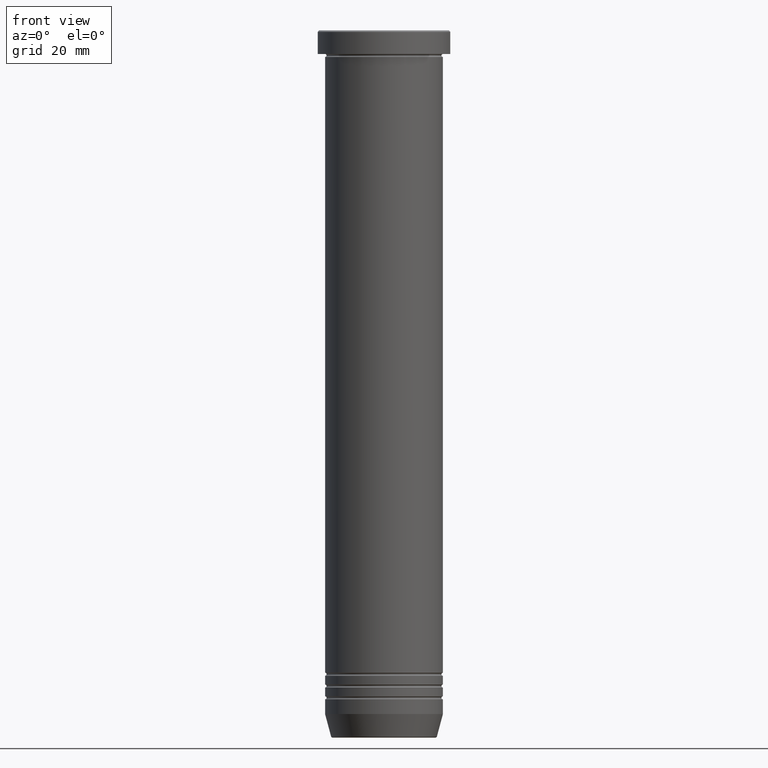
[diagram: clean part render]
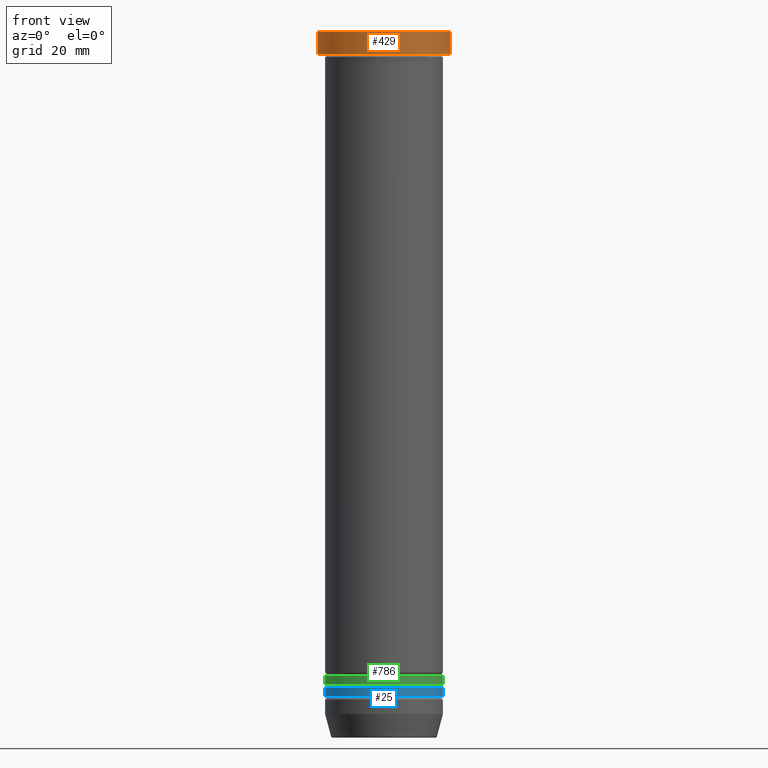
[diagram: same view with three faces highlighted in distinct colors, each labeled with its STEP entity id]
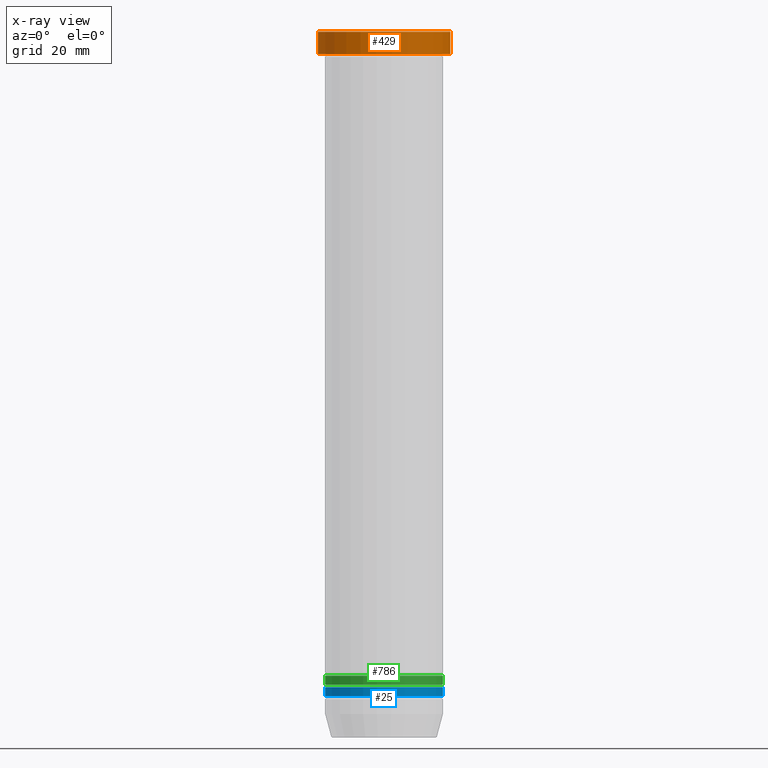
[diagram: x-ray of the same camera — body ghosted, the three highlighted faces saturated]
A machine part, front view with three faces highlighted in distinct colors.
The next image is the same camera in x-ray (body ghosted, the three faces saturated) — at least one of them is partly hidden behind the body in this view.
Their STEP definitions:

[orange] entity #429 — the highlighted cylindrical surface (partial cylindrical patch) has radius 22.5 mm, axis along (-0, -0, 1).
#1 = EDGE_LOOP ( 'NONE', ( #616, #652, #137, #670 ) ) ;
#120 = VERTEX_POINT ( 'NONE', #663 ) ;
#128 = DIRECTION ( 'NONE',  ( -0.000000000000000000, -0.000000000000000000, 1.000000000000000000 ) ) ;
#137 = ORIENTED_EDGE ( 'NONE', *, *, #365, .T. ) ;
#158 = CIRCLE ( 'NONE', #1007, 22.50000000000000000 ) ;
#183 = DIRECTION ( 'NONE',  ( 1.000000000000000000, 0.000000000000000000, 0.000000000000000000 ) ) ;
#195 = LINE ( 'NONE', #291, #944 ) ;
#215 = CARTESIAN_POINT ( 'NONE',  ( -22.50000000000000000, 2.755455298081544778E-15, 0.000000000000000000 ) ) ;
#221 = DIRECTION ( 'NONE',  ( 1.000000000000000000, 0.000000000000000000, 0.000000000000000000 ) ) ;
#224 = CARTESIAN_POINT ( 'NONE',  ( 22.50000000000000000, 0.000000000000000000, -7.999999999999998224 ) ) ;
#248 = VERTEX_POINT ( 'NONE', #925 ) ;
#291 = CARTESIAN_POINT ( 'NONE',  ( 22.50000000000000000, 0.000000000000000000, 0.000000000000000000 ) ) ;
#307 = EDGE_CURVE ( 'NONE', #120, #723, #158, .T. ) ;
#311 = CYLINDRICAL_SURFACE ( 'NONE', #503, 22.50000000000000000 ) ;
#357 = VERTEX_POINT ( 'NONE', #599 ) ;
#365 = EDGE_CURVE ( 'NONE', #723, #357, #195, .T. ) ;
#368 = LINE ( 'NONE', #215, #370 ) ;
#370 = VECTOR ( 'NONE', #128, 1000.000000000000000 ) ;
#429 = ADVANCED_FACE ( 'NONE', ( #883 ), #311, .T. ) ;
#503 = AXIS2_PLACEMENT_3D ( 'NONE', #642, #719, #740 ) ;
#529 = EDGE_CURVE ( 'NONE', #120, #248, #368, .T. ) ;
#547 = EDGE_CURVE ( 'NONE', #357, #248, #1008, .T. ) ;
#599 = CARTESIAN_POINT ( 'NONE',  ( 22.50000000000000000, 0.000000000000000000, -0.5000000000000004441 ) ) ;
#616 = ORIENTED_EDGE ( 'NONE', *, *, #529, .F. ) ;
#642 = CARTESIAN_POINT ( 'NONE',  ( 0.000000000000000000, 0.000000000000000000, 0.000000000000000000 ) ) ;
#652 = ORIENTED_EDGE ( 'NONE', *, *, #307, .T. ) ;
#663 = CARTESIAN_POINT ( 'NONE',  ( -22.50000000000000000, 2.755455298081544778E-15, -7.999999999999998224 ) ) ;
#670 = ORIENTED_EDGE ( 'NONE', *, *, #547, .T. ) ;
#686 = DIRECTION ( 'NONE',  ( -0.000000000000000000, -0.000000000000000000, 1.000000000000000000 ) ) ;
#719 = DIRECTION ( 'NONE',  ( -0.000000000000000000, -0.000000000000000000, 1.000000000000000000 ) ) ;
#723 = VERTEX_POINT ( 'NONE', #224 ) ;
#740 = DIRECTION ( 'NONE',  ( 1.000000000000000000, 0.000000000000000000, 0.000000000000000000 ) ) ;
#744 = CARTESIAN_POINT ( 'NONE',  ( 0.000000000000000000, 0.000000000000000000, -7.999999999999998224 ) ) ;
#822 = DIRECTION ( 'NONE',  ( 0.000000000000000000, 0.000000000000000000, -1.000000000000000000 ) ) ;
#883 = FACE_OUTER_BOUND ( 'NONE', #1, .T. ) ;
#893 = AXIS2_PLACEMENT_3D ( 'NONE', #1002, #822, #221 ) ;
#925 = CARTESIAN_POINT ( 'NONE',  ( -22.50000000000000000, 2.755455298081544778E-15, -0.5000000000000004441 ) ) ;
#939 = DIRECTION ( 'NONE',  ( -0.000000000000000000, -0.000000000000000000, 1.000000000000000000 ) ) ;
#944 = VECTOR ( 'NONE', #939, 1000.000000000000000 ) ;
#1002 = CARTESIAN_POINT ( 'NONE',  ( 0.000000000000000000, 0.000000000000000000, -0.5000000000000004441 ) ) ;
#1007 = AXIS2_PLACEMENT_3D ( 'NONE', #744, #686, #183 ) ;
#1008 = CIRCLE ( 'NONE', #893, 22.50000000000000000 ) ;

[blue] entity #25 — the highlighted cylindrical surface (partial cylindrical patch) has radius 20 mm, axis along (-0, -0, 1).
#12 = AXIS2_PLACEMENT_3D ( 'NONE', #624, #777, #197 ) ;
#14 = EDGE_CURVE ( 'NONE', #378, #1025, #784, .T. ) ;
#24 = DIRECTION ( 'NONE',  ( -0.000000000000000000, -0.000000000000000000, 1.000000000000000000 ) ) ;
#25 = ADVANCED_FACE ( 'NONE', ( #1013 ), #941, .T. ) ;
#31 = CARTESIAN_POINT ( 'NONE',  ( 19.99999999999999289, 0.000000000000000000, -226.0000000000000284 ) ) ;
#81 = ORIENTED_EDGE ( 'NONE', *, *, #688, .T. ) ;
#88 = EDGE_LOOP ( 'NONE', ( #133, #292, #81, #494 ) ) ;
#97 = CARTESIAN_POINT ( 'NONE',  ( -19.99999999999999645, 2.449293598294706119E-15, 0.000000000000000000 ) ) ;
#124 = CARTESIAN_POINT ( 'NONE',  ( -19.99999999999999289, 2.449293598294705724E-15, -226.0000000000000284 ) ) ;
#133 = ORIENTED_EDGE ( 'NONE', *, *, #873, .F. ) ;
#143 = CARTESIAN_POINT ( 'NONE',  ( -20.00000000000000000, 2.449293598294706513E-15, -223.0000000000000284 ) ) ;
#175 = VERTEX_POINT ( 'NONE', #143 ) ;
#182 = DIRECTION ( 'NONE',  ( -0.000000000000000000, -0.000000000000000000, 1.000000000000000000 ) ) ;
#197 = DIRECTION ( 'NONE',  ( 1.000000000000000000, 0.000000000000000000, 0.000000000000000000 ) ) ;
#207 = CARTESIAN_POINT ( 'NONE',  ( 19.99999999999999645, 0.000000000000000000, 0.000000000000000000 ) ) ;
#209 = DIRECTION ( 'NONE',  ( -0.000000000000000000, -0.000000000000000000, 1.000000000000000000 ) ) ;
#292 = ORIENTED_EDGE ( 'NONE', *, *, #14, .T. ) ;
#345 = VERTEX_POINT ( 'NONE', #909 ) ;
#378 = VERTEX_POINT ( 'NONE', #124 ) ;
#387 = DIRECTION ( 'NONE',  ( 1.000000000000000000, 0.000000000000000000, 0.000000000000000000 ) ) ;
#472 = VECTOR ( 'NONE', #182, 1000.000000000000000 ) ;
#494 = ORIENTED_EDGE ( 'NONE', *, *, #537, .F. ) ;
#504 = VECTOR ( 'NONE', #24, 1000.000000000000000 ) ;
#531 = CARTESIAN_POINT ( 'NONE',  ( 0.000000000000000000, 0.000000000000000000, 0.000000000000000000 ) ) ;
#537 = EDGE_CURVE ( 'NONE', #175, #345, #680, .T. ) ;
#542 = DIRECTION ( 'NONE',  ( -0.000000000000000000, -0.000000000000000000, 1.000000000000000000 ) ) ;
#624 = CARTESIAN_POINT ( 'NONE',  ( 0.000000000000000000, 0.000000000000000000, -226.0000000000000284 ) ) ;
#679 = AXIS2_PLACEMENT_3D ( 'NONE', #531, #209, #859 ) ;
#680 = CIRCLE ( 'NONE', #876, 20.00000000000000000 ) ;
#688 = EDGE_CURVE ( 'NONE', #1025, #345, #931, .T. ) ;
#777 = DIRECTION ( 'NONE',  ( -0.000000000000000000, -0.000000000000000000, 1.000000000000000000 ) ) ;
#784 = CIRCLE ( 'NONE', #12, 19.99999999999999289 ) ;
#859 = DIRECTION ( 'NONE',  ( 1.000000000000000000, 0.000000000000000000, 0.000000000000000000 ) ) ;
#873 = EDGE_CURVE ( 'NONE', #378, #175, #918, .T. ) ;
#876 = AXIS2_PLACEMENT_3D ( 'NONE', #1021, #542, #387 ) ;
#909 = CARTESIAN_POINT ( 'NONE',  ( 20.00000000000000000, 0.000000000000000000, -223.0000000000000284 ) ) ;
#918 = LINE ( 'NONE', #97, #472 ) ;
#931 = LINE ( 'NONE', #207, #504 ) ;
#941 = CYLINDRICAL_SURFACE ( 'NONE', #679, 19.99999999999999645 ) ;
#1013 = FACE_OUTER_BOUND ( 'NONE', #88, .T. ) ;
#1021 = CARTESIAN_POINT ( 'NONE',  ( 0.000000000000000000, 0.000000000000000000, -223.0000000000000284 ) ) ;
#1025 = VERTEX_POINT ( 'NONE', #31 ) ;

[green] entity #786 — the highlighted cylindrical surface (partial cylindrical patch) has radius 20 mm, axis along (-0, -0, 1).
#4 = ORIENTED_EDGE ( 'NONE', *, *, #739, .T. ) ;
#36 = CARTESIAN_POINT ( 'NONE',  ( 20.00000000000000000, 0.000000000000000000, -219.0000000000000284 ) ) ;
#48 = AXIS2_PLACEMENT_3D ( 'NONE', #556, #807, #144 ) ;
#75 = CARTESIAN_POINT ( 'NONE',  ( 19.99999999999999645, 0.000000000000000000, 0.000000000000000000 ) ) ;
#91 = CARTESIAN_POINT ( 'NONE',  ( -19.99999999999999645, 2.449293598294706119E-15, -222.0000000000000000 ) ) ;
#144 = DIRECTION ( 'NONE',  ( 1.000000000000000000, 0.000000000000000000, 0.000000000000000000 ) ) ;
#170 = VECTOR ( 'NONE', #478, 1000.000000000000000 ) ;
#196 = CARTESIAN_POINT ( 'NONE',  ( 19.99999999999999645, 0.000000000000000000, -222.0000000000000000 ) ) ;
#201 = DIRECTION ( 'NONE',  ( -0.000000000000000000, -0.000000000000000000, 1.000000000000000000 ) ) ;
#235 = CARTESIAN_POINT ( 'NONE',  ( -19.99999999999999645, 2.449293598294706119E-15, 0.000000000000000000 ) ) ;
#270 = EDGE_CURVE ( 'NONE', #681, #986, #672, .T. ) ;
#312 = FACE_OUTER_BOUND ( 'NONE', #981, .T. ) ;
#331 = DIRECTION ( 'NONE',  ( 1.000000000000000000, 0.000000000000000000, 0.000000000000000000 ) ) ;
#408 = CIRCLE ( 'NONE', #48, 20.00000000000000000 ) ;
#410 = ORIENTED_EDGE ( 'NONE', *, *, #270, .T. ) ;
#417 = DIRECTION ( 'NONE',  ( -0.000000000000000000, -0.000000000000000000, 1.000000000000000000 ) ) ;
#459 = ORIENTED_EDGE ( 'NONE', *, *, #477, .F. ) ;
#464 = EDGE_CURVE ( 'NONE', #675, #986, #408, .T. ) ;
#477 = EDGE_CURVE ( 'NONE', #867, #675, #961, .T. ) ;
#478 = DIRECTION ( 'NONE',  ( -0.000000000000000000, -0.000000000000000000, 1.000000000000000000 ) ) ;
#492 = DIRECTION ( 'NONE',  ( -0.000000000000000000, -0.000000000000000000, 1.000000000000000000 ) ) ;
#556 = CARTESIAN_POINT ( 'NONE',  ( 0.000000000000000000, 0.000000000000000000, -219.0000000000000284 ) ) ;
#568 = CYLINDRICAL_SURFACE ( 'NONE', #693, 19.99999999999999645 ) ;
#637 = DIRECTION ( 'NONE',  ( 1.000000000000000000, 0.000000000000000000, 0.000000000000000000 ) ) ;
#643 = CARTESIAN_POINT ( 'NONE',  ( 0.000000000000000000, 0.000000000000000000, 0.000000000000000000 ) ) ;
#672 = LINE ( 'NONE', #75, #978 ) ;
#675 = VERTEX_POINT ( 'NONE', #785 ) ;
#681 = VERTEX_POINT ( 'NONE', #196 ) ;
#693 = AXIS2_PLACEMENT_3D ( 'NONE', #643, #492, #331 ) ;
#739 = EDGE_CURVE ( 'NONE', #867, #681, #992, .T. ) ;
#774 = ORIENTED_EDGE ( 'NONE', *, *, #464, .F. ) ;
#785 = CARTESIAN_POINT ( 'NONE',  ( -20.00000000000000000, 2.449293598294706513E-15, -219.0000000000000284 ) ) ;
#786 = ADVANCED_FACE ( 'NONE', ( #312 ), #568, .T. ) ;
#807 = DIRECTION ( 'NONE',  ( -0.000000000000000000, -0.000000000000000000, 1.000000000000000000 ) ) ;
#867 = VERTEX_POINT ( 'NONE', #91 ) ;
#961 = LINE ( 'NONE', #235, #170 ) ;
#978 = VECTOR ( 'NONE', #417, 1000.000000000000000 ) ;
#981 = EDGE_LOOP ( 'NONE', ( #459, #4, #410, #774 ) ) ;
#986 = VERTEX_POINT ( 'NONE', #36 ) ;
#992 = CIRCLE ( 'NONE', #1010, 19.99999999999999645 ) ;
#1010 = AXIS2_PLACEMENT_3D ( 'NONE', #1032, #201, #637 ) ;
#1032 = CARTESIAN_POINT ( 'NONE',  ( 0.000000000000000000, 0.000000000000000000, -222.0000000000000000 ) ) ;